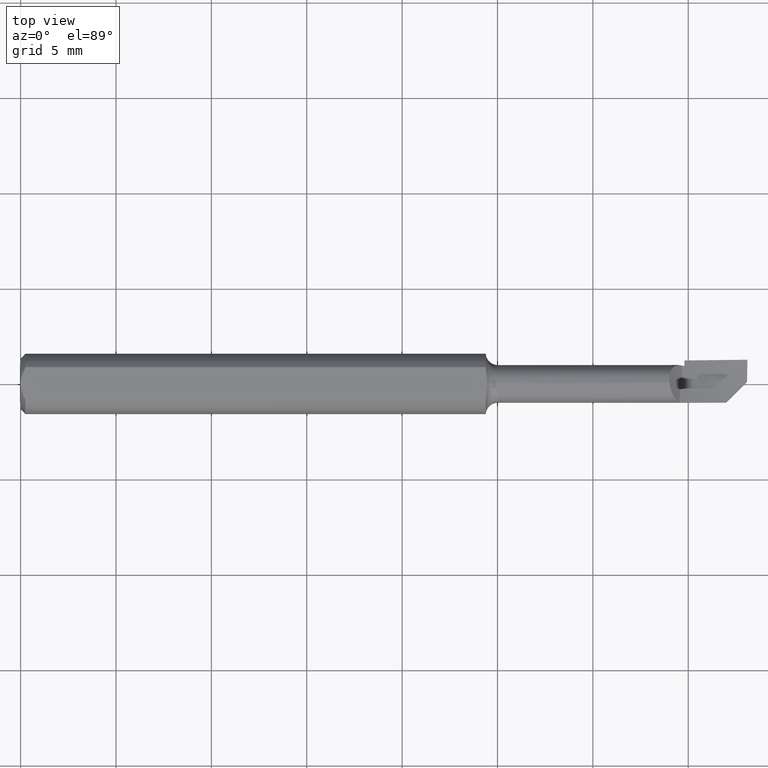
[diagram: clean part render]
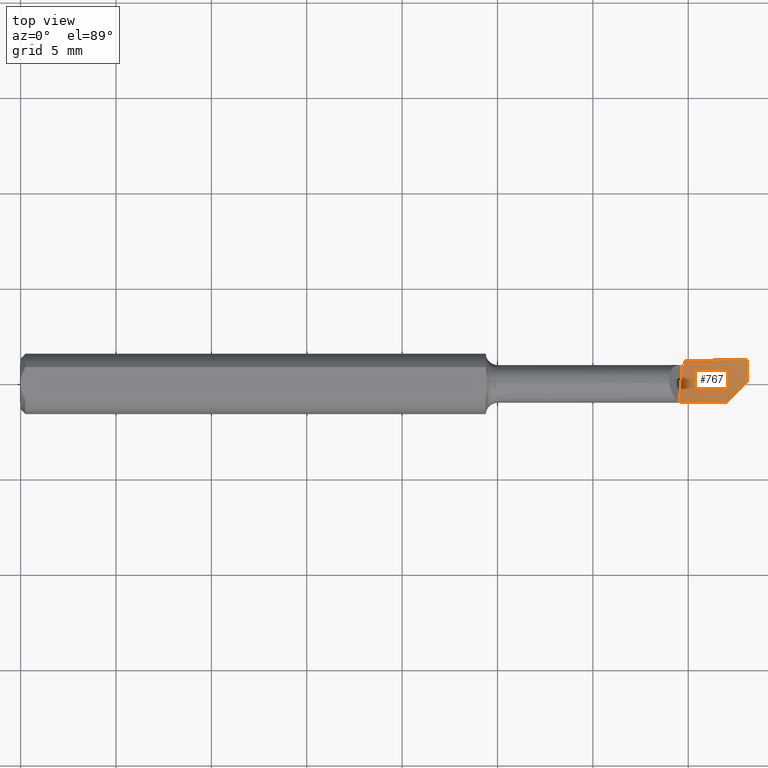
[diagram: same view with one face highlighted and labeled with its STEP entity id]
A machine part, top view. The second image highlights one B-rep face of the part: STEP entity #767.
In plain terms, the highlighted face is a freeform B-spline surface patch.
Its self-contained STEP definition (entity closure, byte-faithful):
#10 = CARTESIAN_POINT ( 'NONE',  ( 1.455543029920441711, -0.03894455628052481688, 0.002078830467602190302 ) ) ;
#20 = B_SPLINE_CURVE_WITH_KNOTS ( 'NONE', 3,
 ( #286, #592, #512, #215 ),
 .UNSPECIFIED., .F., .F.,
 ( 4, 4 ),
 ( 4.337015892788707166E-19, 0.001148449799116577118 ),
 .UNSPECIFIED. ) ;
#25 = CARTESIAN_POINT ( 'NONE',  ( 1.367625188500449340, 0.03771467856751491848, -0.009931221698997990191 ) ) ;
#32 = CARTESIAN_POINT ( 'NONE',  ( 1.276388888888889461, 0.1077317451445226337, -0.03349725798169324309 ) ) ;
#61 = VERTEX_POINT ( 'NONE', #503 ) ;
#69 = VERTEX_POINT ( 'NONE', #757 ) ;
#70 = CARTESIAN_POINT ( 'NONE',  ( 1.052777777777778923, -0.07217458505112368805, 0.08671230868149314153 ) ) ;
#84 = CARTESIAN_POINT ( 'NONE',  ( 1.500000000000000222, 0.1123499999999999360, 0.01027972296205029862 ) ) ;
#110 = ORIENTED_EDGE ( 'NONE', *, *, #787, .F. ) ;
#113 =( BOUNDED_CURVE ( )  B_SPLINE_CURVE ( 3, ( #480, #590, #596, #722 ),
 .UNSPECIFIED., .F., .F. ) 
 B_SPLINE_CURVE_WITH_KNOTS ( ( 4, 4 ),
 ( 0.002310908876997767349, 0.002590621858848661443 ),
 .UNSPECIFIED. ) 
 CURVE ( )  GEOMETRIC_REPRESENTATION_ITEM ( )  RATIONAL_B_SPLINE_CURVE ( ( 0.9794670570133057197, 0.9797490964155690651, 0.9800711465642302223, 0.9804332074592890800 ) ) 
 REPRESENTATION_ITEM ( '' )  );
#127 = CARTESIAN_POINT ( 'NONE',  ( 1.276388888888889461, -0.09986398581076323666, 0.05249170927074218312 ) ) ;
#145 = CARTESIAN_POINT ( 'NONE',  ( 1.500000000000000000, 0.03809952085550591394, -0.006842201710414005413 ) ) ;
#153 = B_SPLINE_CURVE_WITH_KNOTS ( 'NONE', 3,
 ( #276, #514, #770, #216 ),
 .UNSPECIFIED., .F., .F.,
 ( 4, 4 ),
 ( 2.505178387967792883E-05, 0.001601124138346843306 ),
 .UNSPECIFIED. ) ;
#156 = EDGE_CURVE ( 'NONE', #734, #667, #153, .T. ) ;
#157 = CARTESIAN_POINT ( 'NONE',  ( 1.407756143416589723, -0.03877000625809923218, 0.005348829285717054439 ) ) ;
#163 = CARTESIAN_POINT ( 'NONE',  ( 1.052777777777778923, 0.02210226232920658659, -0.03177859678456645964 ) ) ;
#174 = ORIENTED_EDGE ( 'NONE', *, *, #191, .F. ) ;
#191 = EDGE_CURVE ( 'NONE', #69, #318, #113, .T. ) ;
#215 = CARTESIAN_POINT ( 'NONE',  ( 1.499300021147466966, 0.004812434946501276643, -0.002489085815930363460 ) ) ;
#216 = CARTESIAN_POINT ( 'NONE',  ( 1.455543029920441711, -0.03894455628052481688, 0.002078830467602190302 ) ) ;
#221 = CARTESIAN_POINT ( 'NONE',  ( 1.052777777777778923, 0.08671230868149340520, -0.07217458505112374356 ) ) ;
#231 = B_SPLINE_CURVE_WITH_KNOTS ( 'NONE', 3,
 ( #238, #607, #796, #414 ),
 .UNSPECIFIED., .F., .F.,
 ( 4, 4 ),
 ( 0.000000000000000000, 1.000000000000000000 ),
 .UNSPECIFIED. ) ;
#238 = CARTESIAN_POINT ( 'NONE',  ( 1.365251084102846013, 0.03767285701591029101, -0.01008741018590872222 ) ) ;
#240 = CARTESIAN_POINT ( 'NONE',  ( 1.359695360012820764, -0.03805261051767304392, 0.008543935439261858555 ) ) ;
#250 = ORIENTED_EDGE ( 'NONE', *, *, #419, .F. ) ;
#256 = CARTESIAN_POINT ( 'NONE',  ( 1.499300021147466966, 0.004812434946501276643, -0.002489085815930363460 ) ) ;
#258 = EDGE_CURVE ( 'NONE', #325, #69, #614, .T. ) ;
#276 = CARTESIAN_POINT ( 'NONE',  ( 1.499300021147466966, 0.004812434946501276643, -0.002489085815930363460 ) ) ;
#277 = CARTESIAN_POINT ( 'NONE',  ( 1.455543029920441711, -0.03894455628052482382, 0.002078830467602190302 ) ) ;
#286 = CARTESIAN_POINT ( 'NONE',  ( 1.500000000000000222, 0.05000000000000000278, 0.000000000000000000 ) ) ;
#318 = VERTEX_POINT ( 'NONE', #769 ) ;
#325 = VERTEX_POINT ( 'NONE', #333 ) ;
#330 = CARTESIAN_POINT ( 'NONE',  ( 1.164583333333334414, -0.03617501010891502333, 0.01578110641078467671 ) ) ;
#333 = CARTESIAN_POINT ( 'NONE',  ( 1.365251084102846013, 0.03767285701591029101, -0.01008741018590872222 ) ) ;
#337 = CARTESIAN_POINT ( 'NONE',  ( 1.388194444444445175, 0.03673852231519832839, -0.01442066759981334122 ) ) ;
#371 = CARTESIAN_POINT ( 'NONE',  ( 1.370000000000000329, 0.03775520361511513351, -0.009774691810034038392 ) ) ;
#413 = ORIENTED_EDGE ( 'NONE', *, *, #507, .T. ) ;
#414 = CARTESIAN_POINT ( 'NONE',  ( 1.359695360012820764, -0.03805261051767304392, 0.008543935439261858555 ) ) ;
#416 = CARTESIAN_POINT ( 'NONE',  ( 1.370000000000000107, 0.04870486153017806324, -0.01130647882084352164 ) ) ;
#419 = EDGE_CURVE ( 'NONE', #61, #734, #20, .T. ) ;
#425 = FACE_OUTER_BOUND ( 'NONE', #519, .T. ) ;
#430 = CARTESIAN_POINT ( 'NONE',  ( 1.500000000000000222, -0.1123499999999997279, 0.01027972296205016157 ) ) ;
#434 = CARTESIAN_POINT ( 'NONE',  ( 1.276388888888889461, -0.03781776475236416774, 0.008258685294884935899 ) ) ;
#466 = ORIENTED_EDGE ( 'NONE', *, *, #604, .F. ) ;
#467 = CARTESIAN_POINT ( 'NONE',  ( 1.500000000000000222, 0.05000000000000000278, 0.000000000000000000 ) ) ;
#478 = ORIENTED_EDGE ( 'NONE', *, *, #258, .F. ) ;
#480 = CARTESIAN_POINT ( 'NONE',  ( 1.370000000000000329, 0.03775520361511513351, -0.009774691810034038392 ) ) ;
#490 =( BOUNDED_SURFACE ( )  B_SPLINE_SURFACE ( 3, 2, ( 
 ( #430, #683, #127, #622, #70 ),
 ( #559, #492, #434, #330, #520 ),
 ( #145, #337, #583, #638, #163 ),
 ( #84, #777, #32, #763, #221 ) ),
 .UNSPECIFIED., .F., .F., .T. ) 
 B_SPLINE_SURFACE_WITH_KNOTS ( ( 4, 4 ),
 ( 3, 2, 3 ),
 ( 0.000000000000000000, 1.000000000000000000 ),
 ( 0.000000000000000000, 0.5000000000000000000, 1.000000000000000000 ),
 .UNSPECIFIED. ) 
 GEOMETRIC_REPRESENTATION_ITEM ( )  RATIONAL_B_SPLINE_SURFACE ( (
 ( 1.000000000000000000, 0.9807852804032304306, 1.000000000000000000, 0.9807852804032304306, 1.000000000000000000),
 ( 0.9829519941216796619, 0.9640648471775461470, 0.9829519941216796619, 0.9640648471775461470, 0.9829519941216796619),
 ( 0.9829519941216796619, 0.9640648471775461470, 0.9829519941216796619, 0.9640648471775461470, 0.9829519941216796619),
 ( 1.000000000000000000, 0.9807852804032304306, 1.000000000000000000, 0.9807852804032304306, 1.000000000000000000) ) ) 
 REPRESENTATION_ITEM ( '' )  SURFACE ( )  );
#492 = CARTESIAN_POINT ( 'NONE',  ( 1.388194444444445175, -0.03946051939581329132, 0.0007362641789851945414 ) ) ;
#502 = CARTESIAN_POINT ( 'NONE',  ( 1.365251084102846013, 0.03767285701591029101, -0.01008741018590872222 ) ) ;
#503 = CARTESIAN_POINT ( 'NONE',  ( 1.500000000000000222, 0.05000000000000000278, 0.000000000000000000 ) ) ;
#507 = EDGE_CURVE ( 'NONE', #325, #591, #231, .T. ) ;
#512 = CARTESIAN_POINT ( 'NONE',  ( 1.499447209922445845, 0.01988270941371843639, -0.002361448552270884339 ) ) ;
#514 = CARTESIAN_POINT ( 'NONE',  ( 1.484622341822528391, -0.009865244378437656655, -0.002737267129341123140 ) ) ;
#515 = CARTESIAN_POINT ( 'NONE',  ( 1.359695360012820764, -0.03805261051767304392, 0.008543935439261858555 ) ) ;
#519 = EDGE_LOOP ( 'NONE', ( #250, #466, #174, #478, #413, #110, #571 ) ) ;
#520 = CARTESIAN_POINT ( 'NONE',  ( 1.052777777777778923, -0.03177859678456636250, 0.02210226232920636108 ) ) ;
#559 = CARTESIAN_POINT ( 'NONE',  ( 1.500000000000000000, -0.03809952085550567802, -0.006842201710414093016 ) ) ;
#571 = ORIENTED_EDGE ( 'NONE', *, *, #156, .F. ) ;
#582 =( BOUNDED_CURVE ( )  B_SPLINE_CURVE ( 2, ( #277, #157, #515 ),
 .UNSPECIFIED., .F., .F. ) 
 B_SPLINE_CURVE_WITH_KNOTS ( ( 3, 3 ),
 ( 0.1003351680479023650, 0.3131515010944845856 ),
 .UNSPECIFIED. ) 
 CURVE ( )  GEOMETRIC_REPRESENTATION_ITEM ( )  RATIONAL_B_SPLINE_CURVE ( ( 0.9826245589785704837, 0.9777837080203805042, 0.9798263188368094845 ) ) 
 REPRESENTATION_ITEM ( '' )  );
#583 = CARTESIAN_POINT ( 'NONE',  ( 1.276388888888889461, 0.03258097028141330315, -0.02090142553001554659 ) ) ;
#590 = CARTESIAN_POINT ( 'NONE',  ( 1.370000000000000107, 0.04139996848374703775, -0.01032572341798316737 ) ) ;
#591 = VERTEX_POINT ( 'NONE', #240 ) ;
#592 = CARTESIAN_POINT ( 'NONE',  ( 1.499679331117886205, 0.03494533956189697227, -0.001541575275462839277 ) ) ;
#596 = CARTESIAN_POINT ( 'NONE',  ( 1.370000000000000107, 0.04505000514236644910, -0.01083632664577996105 ) ) ;
#599 = CARTESIAN_POINT ( 'NONE',  ( 1.435614150860146321, 0.05000000000000002359, -0.005727417396443271712 ) ) ;
#604 = EDGE_CURVE ( 'NONE', #318, #61, #754, .T. ) ;
#607 = CARTESIAN_POINT ( 'NONE',  ( 1.363416037857527741, 0.01197395513081393748, -0.006109781124296951964 ) ) ;
#614 =( BOUNDED_CURVE ( )  B_SPLINE_CURVE ( 2, ( #502, #25, #371 ),
 .UNSPECIFIED., .F., .T. ) 
 B_SPLINE_CURVE_WITH_KNOTS ( ( 3, 3 ),
 ( 0.6991705777441016290, 0.7096974707097923885 ),
 .UNSPECIFIED. ) 
 CURVE ( )  GEOMETRIC_REPRESENTATION_ITEM ( )  RATIONAL_B_SPLINE_CURVE ( ( 0.9796128604871006118, 0.9795315376775903804, 0.9794670570133059417 ) ) 
 REPRESENTATION_ITEM ( '' )  );
#622 = CARTESIAN_POINT ( 'NONE',  ( 1.164583333333334192, -0.08942273565191515006, 0.07235589110432964766 ) ) ;
#638 = CARTESIAN_POINT ( 'NONE',  ( 1.164583333333334414, 0.02842341824762828831, -0.02738218346021774677 ) ) ;
#667 = VERTEX_POINT ( 'NONE', #10 ) ;
#683 = CARTESIAN_POINT ( 'NONE',  ( 1.388194444444444731, -0.1103052359696112955, 0.03262752743715468390 ) ) ;
#722 = CARTESIAN_POINT ( 'NONE',  ( 1.370000000000000107, 0.04870486153017806324, -0.01130647882084352164 ) ) ;
#734 = VERTEX_POINT ( 'NONE', #256 ) ;
#754 =( BOUNDED_CURVE ( )  B_SPLINE_CURVE ( 2, ( #416, #599, #467 ),
 .UNSPECIFIED., .F., .T. ) 
 B_SPLINE_CURVE_WITH_KNOTS ( ( 3, 3 ),
 ( 0.7096974707101522117, 1.000000000000000000 ),
 .UNSPECIFIED. ) 
 CURVE ( )  GEOMETRIC_REPRESENTATION_ITEM ( )  RATIONAL_B_SPLINE_CURVE ( ( 0.9804332074592847501, 0.9786532554454301369, 0.9896944484252400143 ) ) 
 REPRESENTATION_ITEM ( '' )  );
#757 = CARTESIAN_POINT ( 'NONE',  ( 1.370000000000000329, 0.03775520361511513351, -0.009774691810034038392 ) ) ;
#763 = CARTESIAN_POINT ( 'NONE',  ( 1.164583333333334192, 0.1010687262586568991, -0.05492643445033219829 ) ) ;
#767 = ADVANCED_FACE ( 'NONE', ( #425 ), #490, .T. ) ;
#769 = CARTESIAN_POINT ( 'NONE',  ( 1.370000000000000107, 0.04870486153017806324, -0.01130647882084352164 ) ) ;
#770 = CARTESIAN_POINT ( 'NONE',  ( 1.470036917125767228, -0.02445066907519884147, -0.001210027987432754073 ) ) ;
#777 = CARTESIAN_POINT ( 'NONE',  ( 1.388194444444444731, 0.1143947640303883684, -0.01206808151305426187 ) ) ;
#787 = EDGE_CURVE ( 'NONE', #667, #591, #582, .T. ) ;
#796 = CARTESIAN_POINT ( 'NONE',  ( 1.361581600709551587, -0.01344189789626776266, 0.0001422799351594068186 ) ) ;